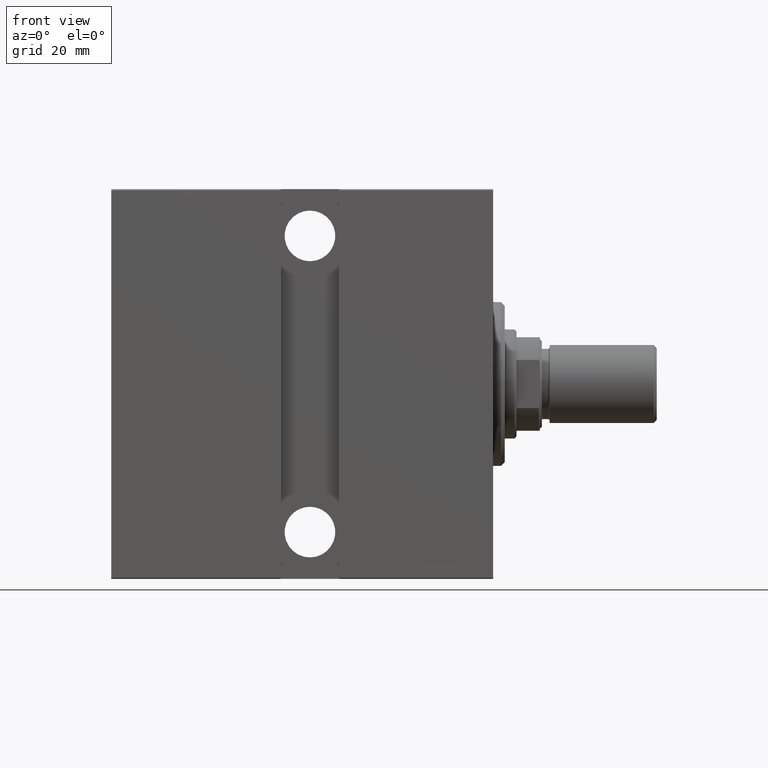
[diagram: clean part render]
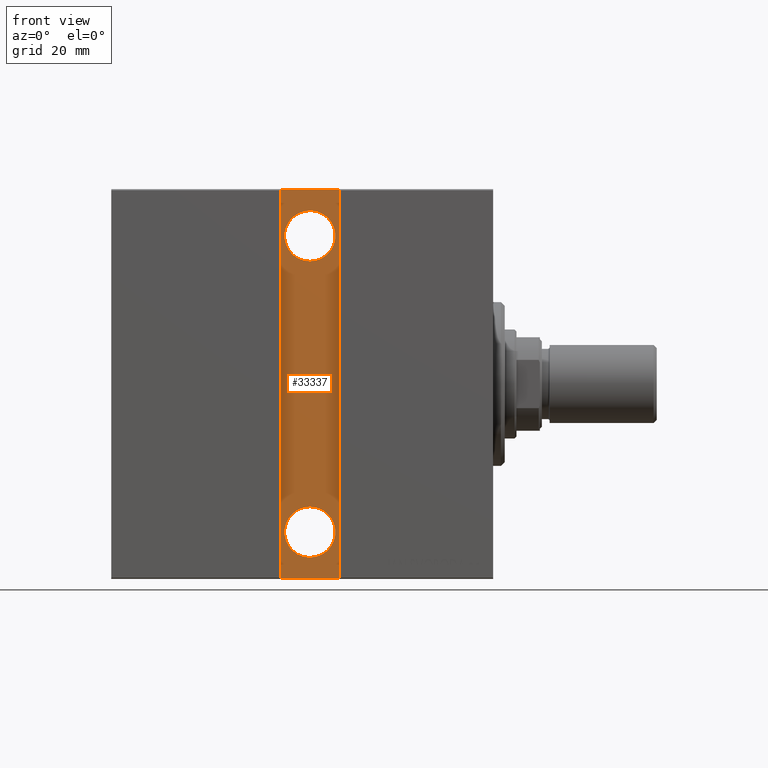
[diagram: same view with one face highlighted and labeled with its STEP entity id]
A machine part, front view. The second image highlights one B-rep face of the part: STEP entity #33337.
In plain terms, the highlighted planar face has unit normal (0, 1, 0).
Its self-contained STEP definition (entity closure, byte-faithful):
#2384 = DIRECTION ( 'NONE',  ( -1.387778780781445676E-16, -0.000000000000000000, -1.000000000000000000 ) ) ;
#3021 = LINE ( 'NONE', #29790, #34801 ) ;
#3180 = DIRECTION ( 'NONE',  ( 0.000000000000000000, -0.000000000000000000, -1.000000000000000000 ) ) ;
#5423 = CARTESIAN_POINT ( 'NONE',  ( 47.00000000000002132, 32.50000000000000000, 44.50000000000000000 ) ) ;
#5637 = CIRCLE ( 'NONE', #29433, 6.499999999999999112 ) ;
#6584 = CARTESIAN_POINT ( 'NONE',  ( 47.00000000000002132, 32.50000000000000000, -31.50000000000000000 ) ) ;
#6803 = CIRCLE ( 'NONE', #11024, 6.499999999999999112 ) ;
#6849 = ORIENTED_EDGE ( 'NONE', *, *, #10471, .T. ) ;
#6968 = DIRECTION ( 'NONE',  ( 0.000000000000000000, -1.000000000000000000, 0.000000000000000000 ) ) ;
#7215 = CARTESIAN_POINT ( 'NONE',  ( 47.00000000000002132, 32.50000000000000000, 31.50000000000000000 ) ) ;
#7993 = LINE ( 'NONE', #42413, #25289 ) ;
#8012 = AXIS2_PLACEMENT_3D ( 'NONE', #32903, #36843, #22803 ) ;
#8134 = EDGE_CURVE ( 'NONE', #42498, #34486, #15711, .T. ) ;
#10471 = EDGE_CURVE ( 'NONE', #41390, #31786, #23852, .T. ) ;
#10482 = CARTESIAN_POINT ( 'NONE',  ( 47.00000000000002132, 32.50000000000000000, -38.00000000000000000 ) ) ;
#11024 = AXIS2_PLACEMENT_3D ( 'NONE', #40526, #16178, #37019 ) ;
#11378 = VERTEX_POINT ( 'NONE', #6584 ) ;
#11901 = AXIS2_PLACEMENT_3D ( 'NONE', #20292, #26439, #3180 ) ;
#12138 = CARTESIAN_POINT ( 'NONE',  ( 39.50000000000000000, 32.50000000000000000, -50.00000000000000711 ) ) ;
#12557 = EDGE_LOOP ( 'NONE', ( #34469, #37229 ) ) ;
#13069 = PLANE ( 'NONE',  #11901 ) ;
#13284 = FACE_BOUND ( 'NONE', #12557, .T. ) ;
#15711 = CIRCLE ( 'NONE', #8012, 6.499999999999999112 ) ;
#15814 = EDGE_LOOP ( 'NONE', ( #29958, #37282 ) ) ;
#16178 = DIRECTION ( 'NONE',  ( 0.000000000000000000, -1.000000000000000000, 0.000000000000000000 ) ) ;
#17243 = CARTESIAN_POINT ( 'NONE',  ( 54.50000000000001421, 32.50000000000000711, -50.00000000000000711 ) ) ;
#17486 = CARTESIAN_POINT ( 'NONE',  ( 39.50000000000000000, 32.50000000000000000, -50.00000000000000711 ) ) ;
#17921 = DIRECTION ( 'NONE',  ( 6.938893903907228378E-17, 0.000000000000000000, 1.000000000000000000 ) ) ;
#19227 = ORIENTED_EDGE ( 'NONE', *, *, #37593, .T. ) ;
#20292 = CARTESIAN_POINT ( 'NONE',  ( 0.000000000000000000, 32.50000000000000000, 0.000000000000000000 ) ) ;
#20858 = VECTOR ( 'NONE', #42650, 1000.000000000000000 ) ;
#21701 = DIRECTION ( 'NONE',  ( 0.000000000000000000, 0.000000000000000000, -1.000000000000000000 ) ) ;
#21946 = EDGE_CURVE ( 'NONE', #34486, #42498, #6803, .T. ) ;
#22026 = CARTESIAN_POINT ( 'NONE',  ( 47.00000000000002132, 32.50000000000000000, -44.50000000000000000 ) ) ;
#22370 = ORIENTED_EDGE ( 'NONE', *, *, #24512, .T. ) ;
#22618 = CARTESIAN_POINT ( 'NONE',  ( 39.50000000000000711, 32.50000000000000000, 49.99999999999999289 ) ) ;
#22803 = DIRECTION ( 'NONE',  ( 0.000000000000000000, 0.000000000000000000, -1.000000000000000000 ) ) ;
#23623 = EDGE_CURVE ( 'NONE', #30430, #11378, #36883, .T. ) ;
#23852 = LINE ( 'NONE', #17486, #30476 ) ;
#24512 = EDGE_CURVE ( 'NONE', #38773, #42887, #3021, .T. ) ;
#25289 = VECTOR ( 'NONE', #25523, 1000.000000000000000 ) ;
#25523 = DIRECTION ( 'NONE',  ( -1.000000000000000000, 0.000000000000000000, 0.000000000000000000 ) ) ;
#26439 = DIRECTION ( 'NONE',  ( 0.000000000000000000, -1.000000000000000000, 0.000000000000000000 ) ) ;
#28322 = EDGE_CURVE ( 'NONE', #31786, #38773, #35014, .T. ) ;
#28836 = CARTESIAN_POINT ( 'NONE',  ( 54.50000000000001421, 32.50000000000000000, 49.99999999999999289 ) ) ;
#29433 = AXIS2_PLACEMENT_3D ( 'NONE', #10482, #6968, #37252 ) ;
#29527 = FACE_OUTER_BOUND ( 'NONE', #37154, .T. ) ;
#29790 = CARTESIAN_POINT ( 'NONE',  ( 54.50000000000000000, 32.50000000000000000, -50.00000000000000711 ) ) ;
#29958 = ORIENTED_EDGE ( 'NONE', *, *, #21946, .T. ) ;
#30430 = VERTEX_POINT ( 'NONE', #22026 ) ;
#30476 = VECTOR ( 'NONE', #17921, 1000.000000000000000 ) ;
#31786 = VERTEX_POINT ( 'NONE', #22618 ) ;
#32019 = CARTESIAN_POINT ( 'NONE',  ( 47.00000000000002132, 32.50000000000000000, -38.00000000000000000 ) ) ;
#32903 = CARTESIAN_POINT ( 'NONE',  ( 47.00000000000002132, 32.50000000000000000, 38.00000000000000000 ) ) ;
#33337 = ADVANCED_FACE ( 'NONE', ( #40277, #13284, #29527 ), #13069, .F. ) ;
#34452 = DIRECTION ( 'NONE',  ( 0.000000000000000000, -1.000000000000000000, 0.000000000000000000 ) ) ;
#34469 = ORIENTED_EDGE ( 'NONE', *, *, #39429, .T. ) ;
#34486 = VERTEX_POINT ( 'NONE', #5423 ) ;
#34801 = VECTOR ( 'NONE', #2384, 1000.000000000000000 ) ;
#35014 = LINE ( 'NONE', #28836, #20858 ) ;
#35486 = CARTESIAN_POINT ( 'NONE',  ( 54.50000000000001421, 32.50000000000000000, 49.99999999999999289 ) ) ;
#36843 = DIRECTION ( 'NONE',  ( 0.000000000000000000, -1.000000000000000000, 0.000000000000000000 ) ) ;
#36883 = CIRCLE ( 'NONE', #42493, 6.499999999999999112 ) ;
#37019 = DIRECTION ( 'NONE',  ( 0.000000000000000000, 0.000000000000000000, -1.000000000000000000 ) ) ;
#37154 = EDGE_LOOP ( 'NONE', ( #6849, #43077, #22370, #19227 ) ) ;
#37229 = ORIENTED_EDGE ( 'NONE', *, *, #23623, .T. ) ;
#37252 = DIRECTION ( 'NONE',  ( 0.000000000000000000, 0.000000000000000000, -1.000000000000000000 ) ) ;
#37282 = ORIENTED_EDGE ( 'NONE', *, *, #8134, .T. ) ;
#37593 = EDGE_CURVE ( 'NONE', #42887, #41390, #7993, .T. ) ;
#38773 = VERTEX_POINT ( 'NONE', #35486 ) ;
#39429 = EDGE_CURVE ( 'NONE', #11378, #30430, #5637, .T. ) ;
#40277 = FACE_BOUND ( 'NONE', #15814, .T. ) ;
#40526 = CARTESIAN_POINT ( 'NONE',  ( 47.00000000000002132, 32.50000000000000000, 38.00000000000000000 ) ) ;
#41390 = VERTEX_POINT ( 'NONE', #12138 ) ;
#42413 = CARTESIAN_POINT ( 'NONE',  ( 54.50000000000000000, 32.50000000000000000, -50.00000000000000711 ) ) ;
#42493 = AXIS2_PLACEMENT_3D ( 'NONE', #32019, #34452, #21701 ) ;
#42498 = VERTEX_POINT ( 'NONE', #7215 ) ;
#42650 = DIRECTION ( 'NONE',  ( 1.000000000000000000, -0.000000000000000000, -0.000000000000000000 ) ) ;
#42887 = VERTEX_POINT ( 'NONE', #17243 ) ;
#43077 = ORIENTED_EDGE ( 'NONE', *, *, #28322, .T. ) ;